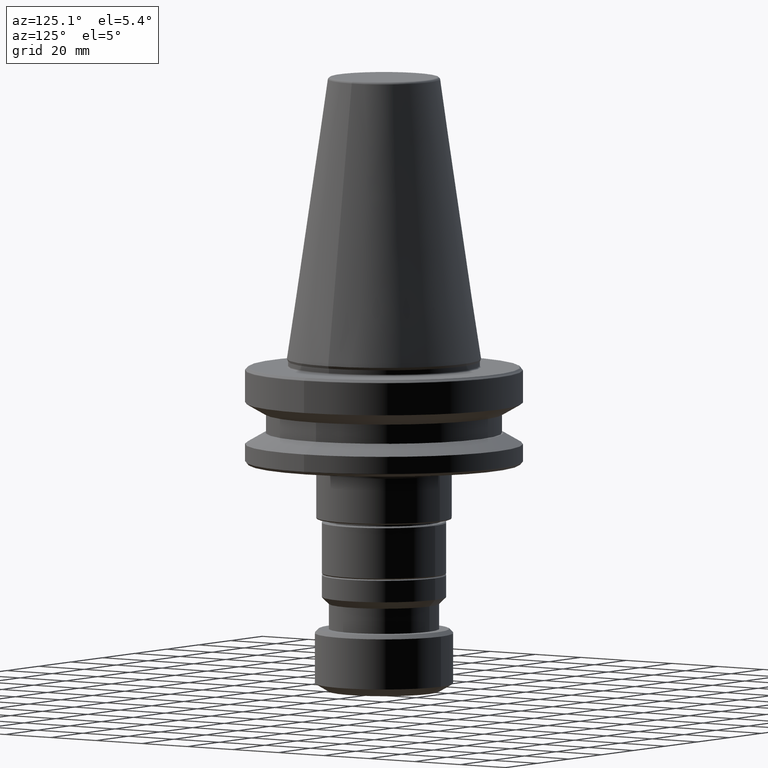
[diagram: clean part render]
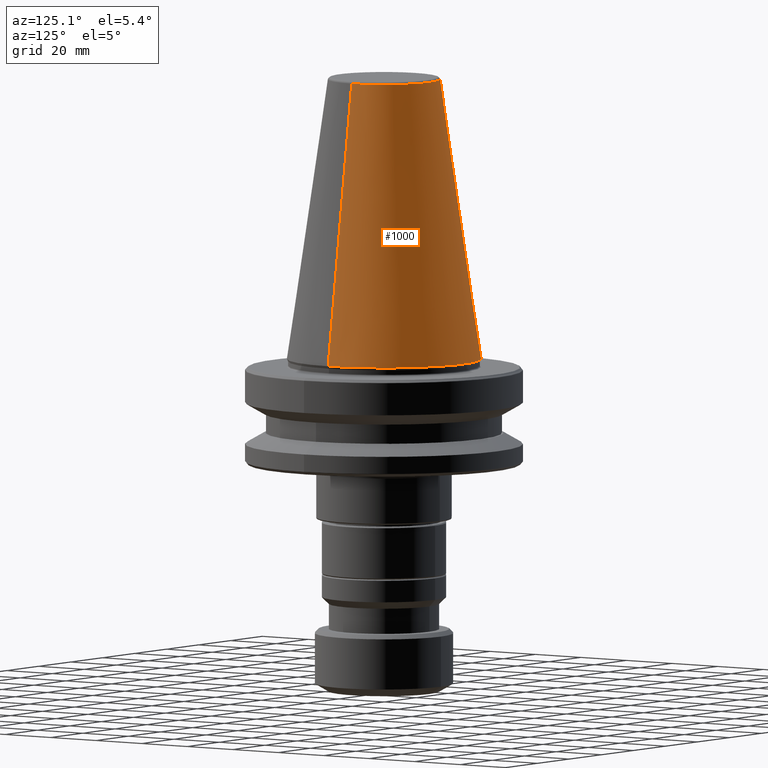
[diagram: same view with one face highlighted and labeled with its STEP entity id]
A machine part, auxiliary view. The second image highlights one B-rep face of the part: STEP entity #1000.
In plain terms, the highlighted conical surface has half-angle 8.297 deg.
Its self-contained STEP definition (entity closure, byte-faithful):
#13 = LINE ( 'NONE', #277, #1107 ) ;
#32 = DIRECTION ( 'NONE',  ( 0.0000000000000000000, 0.0000000000000000000, -1.000000000000000000 ) ) ;
#55 = CARTESIAN_POINT ( 'NONE',  ( -20.20381605152171600, 0.0000000000000000000, 100.9443082272673300 ) ) ;
#73 = DIRECTION ( 'NONE',  ( -0.1443082272673070800, 0.0000000000000000000, -0.9895327864921743500 ) ) ;
#199 = CIRCLE ( 'NONE', #1510, 20.20381605152171600 ) ;
#209 = EDGE_CURVE ( 'NONE', #1375, #1218, #1353, .T. ) ;
#277 = CARTESIAN_POINT ( 'NONE',  ( 20.20381605152171600, 2.474253865805798900E-015, 100.9443082272673300 ) ) ;
#306 = CARTESIAN_POINT ( 'NONE',  ( 0.0000000000000000000, 0.0000000000000000000, 100.9443082272673300 ) ) ;
#311 = DIRECTION ( 'NONE',  ( 1.000000000000000000, 0.0000000000000000000, 0.0000000000000000000 ) ) ;
#314 = ORIENTED_EDGE ( 'NONE', *, *, #1013, .F. ) ;
#341 = ORIENTED_EDGE ( 'NONE', *, *, #209, .T. ) ;
#403 = CARTESIAN_POINT ( 'NONE',  ( -34.92500000000000400, 4.277078946022131700E-015, 0.0000000000000000000 ) ) ;
#445 = DIRECTION ( 'NONE',  ( 1.000000000000000000, 0.0000000000000000000, 0.0000000000000000000 ) ) ;
#554 = VECTOR ( 'NONE', #73, 1000.000000000000000 ) ;
#605 = DIRECTION ( 'NONE',  ( -1.000000000000000000, 0.0000000000000000000, 0.0000000000000000000 ) ) ;
#627 = VERTEX_POINT ( 'NONE', #923 ) ;
#690 = EDGE_CURVE ( 'NONE', #1861, #627, #199, .T. ) ;
#725 = CARTESIAN_POINT ( 'NONE',  ( 34.92500000000000400, 0.0000000000000000000, 0.0000000000000000000 ) ) ;
#839 = CONICAL_SURFACE ( 'NONE', #1897, 20.20381605152171600, 0.1448138465474190800 ) ;
#840 = DIRECTION ( 'NONE',  ( 0.1443082272673070800, 1.767266086135364000E-017, -0.9895327864921743500 ) ) ;
#923 = CARTESIAN_POINT ( 'NONE',  ( -20.20381605152171600, 0.0000000000000000000, 100.9443082272673300 ) ) ;
#933 = FACE_OUTER_BOUND ( 'NONE', #1618, .T. ) ;
#961 = AXIS2_PLACEMENT_3D ( 'NONE', #1184, #1167, #311 ) ;
#1000 = ADVANCED_FACE ( 'NONE', ( #933 ), #839, .T. ) ;
#1013 = EDGE_CURVE ( 'NONE', #627, #1218, #1226, .T. ) ;
#1088 = ORIENTED_EDGE ( 'NONE', *, *, #1829, .T. ) ;
#1107 = VECTOR ( 'NONE', #840, 1000.000000000000000 ) ;
#1167 = DIRECTION ( 'NONE',  ( -0.0000000000000000000, -0.0000000000000000000, 1.000000000000000000 ) ) ;
#1184 = CARTESIAN_POINT ( 'NONE',  ( 0.0000000000000000000, 0.0000000000000000000, 0.0000000000000000000 ) ) ;
#1218 = VERTEX_POINT ( 'NONE', #403 ) ;
#1226 = LINE ( 'NONE', #55, #554 ) ;
#1347 = CARTESIAN_POINT ( 'NONE',  ( 0.0000000000000000000, 0.0000000000000000000, 100.9443082272673300 ) ) ;
#1353 = CIRCLE ( 'NONE', #961, 34.92500000000000400 ) ;
#1375 = VERTEX_POINT ( 'NONE', #725 ) ;
#1426 = DIRECTION ( 'NONE',  ( -0.0000000000000000000, -0.0000000000000000000, 1.000000000000000000 ) ) ;
#1510 = AXIS2_PLACEMENT_3D ( 'NONE', #1347, #1426, #445 ) ;
#1528 = ORIENTED_EDGE ( 'NONE', *, *, #690, .F. ) ;
#1618 = EDGE_LOOP ( 'NONE', ( #1528, #1088, #341, #314 ) ) ;
#1743 = CARTESIAN_POINT ( 'NONE',  ( 20.20381605152171600, 3.375666405913964900E-015, 100.9443082272673300 ) ) ;
#1829 = EDGE_CURVE ( 'NONE', #1861, #1375, #13, .T. ) ;
#1861 = VERTEX_POINT ( 'NONE', #1743 ) ;
#1897 = AXIS2_PLACEMENT_3D ( 'NONE', #306, #32, #605 ) ;